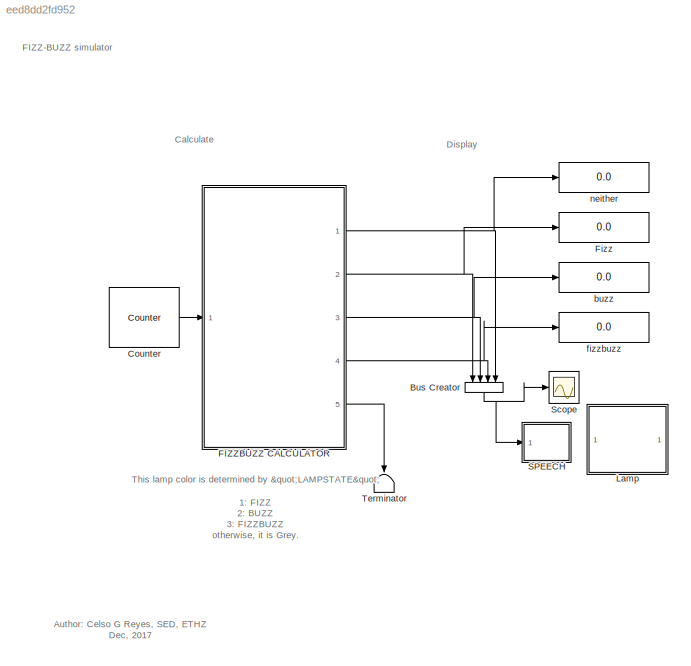
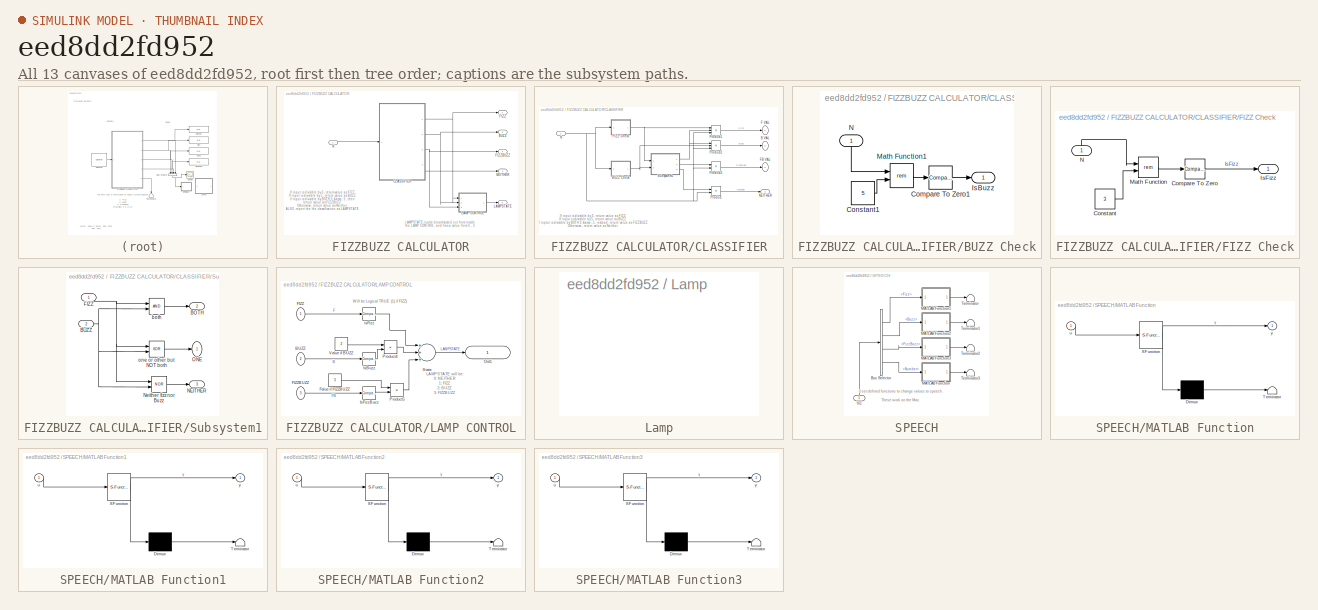
[diagram: thumbnail index - all 13 canvases of the model, root first then tree order]
MODEL slx_eed8dd2fd952
KIND model
CONFIG AbsTol = auto
CONFIG EnableMultiTasking = off
CONFIG FixedStep = auto
CONFIG MaxStep = auto
CONFIG MinStep = auto
CONFIG RelTol = 1e-3
CONFIG SampleTimeConstraint = Unconstrained
CONFIG Solver = VariableStepAuto
CONFIG SolverName = VariableStepAuto
CONFIG StartTime = 0.0
CONFIG StopTime = 31.0
BLOCK [BusCreator] Bus Creator
  DisplayOption = bar
  InheritFromInputs = on
  Inputs = 4
  Ports = [4, 1]
BLOCK [Reference] Counter  REF=dspswit3/Counter
  Ports = [1, 1]
  SourceBlock = dspswit3/Counter
  SourceProductBaseCode = DS
  SourceProductName = DSP System Toolbox
  SourceType = Counter
BLOCK [SubSystem] FIZZBUZZ CALCULATOR
  Ports = [1, 5]
  RequestExecContextInheritance = off
  Variant = off
BLOCK [Outport] FIZZBUZZ CALCULATOR/BUZZ
  IconDisplay = Port number
  Port = 3
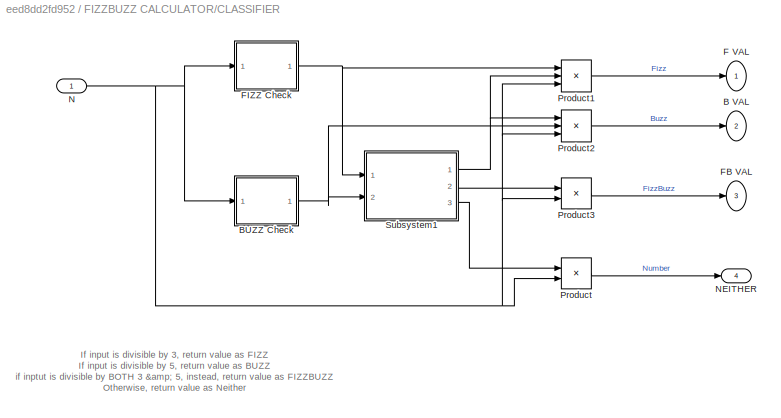
BLOCK [SubSystem] FIZZBUZZ CALCULATOR/CLASSIFIER
  Ports = [1, 4]
  RequestExecContextInheritance = off
  Variant = off
BLOCK [Outport] FIZZBUZZ CALCULATOR/CLASSIFIER/B VAL
  IconDisplay = Port number
  Port = 2
BLOCK [SubSystem] FIZZBUZZ CALCULATOR/CLASSIFIER/BUZZ Check
  Ports = [1, 1]
  RequestExecContextInheritance = off
  Variant = off
BLOCK [Reference] FIZZBUZZ CALCULATOR/CLASSIFIER/BUZZ Check/Compare To Zero1  REF=simulink/Logic and Bit
Operations/Compare
To Zero
  Ports = [1, 1]
  SourceBlock = simulink/Logic and Bit\nOperations/Compare\nTo Zero
  SourceProductBaseCode = SL
  SourceProductName = Simulink
  SourceType = Compare To Zero
BLOCK [Constant] FIZZBUZZ CALCULATOR/CLASSIFIER/BUZZ Check/Constant1
  Value = 5
BLOCK [Outport] FIZZBUZZ CALCULATOR/CLASSIFIER/BUZZ Check/IsBuzz
  IconDisplay = Port number
BLOCK [Math] FIZZBUZZ CALCULATOR/CLASSIFIER/BUZZ Check/Math Function1
  Operator = rem
  Ports = [2, 1]
BLOCK [Inport] FIZZBUZZ CALCULATOR/CLASSIFIER/BUZZ Check/N
  IconDisplay = Port number
BLOCK [Outport] FIZZBUZZ CALCULATOR/CLASSIFIER/F VAL
  IconDisplay = Port number
BLOCK [Outport] FIZZBUZZ CALCULATOR/CLASSIFIER/FB VAL
  IconDisplay = Port number
  Port = 3
BLOCK [SubSystem] FIZZBUZZ CALCULATOR/CLASSIFIER/FIZZ Check
  Ports = [1, 1]
  RequestExecContextInheritance = off
  Variant = off
BLOCK [Reference] FIZZBUZZ CALCULATOR/CLASSIFIER/FIZZ Check/Compare To Zero  REF=simulink/Logic and Bit
Operations/Compare
To Zero
  Ports = [1, 1]
  SourceBlock = simulink/Logic and Bit\nOperations/Compare\nTo Zero
  SourceProductBaseCode = SL
  SourceProductName = Simulink
  SourceType = Compare To Zero
BLOCK [Constant] FIZZBUZZ CALCULATOR/CLASSIFIER/FIZZ Check/Constant
  Value = 3
BLOCK [Outport] FIZZBUZZ CALCULATOR/CLASSIFIER/FIZZ Check/IsFizz
  IconDisplay = Port number
BLOCK [Math] FIZZBUZZ CALCULATOR/CLASSIFIER/FIZZ Check/Math Function
  Operator = rem
  Ports = [2, 1]
BLOCK [Inport] FIZZBUZZ CALCULATOR/CLASSIFIER/FIZZ Check/N
  IconDisplay = Port number
BLOCK [Inport] FIZZBUZZ CALCULATOR/CLASSIFIER/N
  IconDisplay = Port number
BLOCK [Outport] FIZZBUZZ CALCULATOR/CLASSIFIER/NEITHER
  IconDisplay = Port number
  Port = 4
BLOCK [Product] FIZZBUZZ CALCULATOR/CLASSIFIER/Product
  InputSameDT = off
  OutDataTypeStr = Inherit: Inherit via internal rule
  Ports = [2, 1]
  RndMeth = Floor
  SaturateOnIntegerOverflow = off
BLOCK [Product] FIZZBUZZ CALCULATOR/CLASSIFIER/Product1
  InputSameDT = off
  Inputs = 3
  OutDataTypeStr = Inherit: Inherit via internal rule
  Ports = [3, 1]
  RndMeth = Floor
  SaturateOnIntegerOverflow = off
BLOCK [Product] FIZZBUZZ CALCULATOR/CLASSIFIER/Product2
  InputSameDT = off
  Inputs = 3
  OutDataTypeStr = Inherit: Inherit via internal rule
  Ports = [3, 1]
  RndMeth = Floor
  SaturateOnIntegerOverflow = off
BLOCK [Product] FIZZBUZZ CALCULATOR/CLASSIFIER/Product3
  InputSameDT = off
  OutDataTypeStr = Inherit: Inherit via internal rule
  Ports = [2, 1]
  RndMeth = Floor
  SaturateOnIntegerOverflow = off
BLOCK [SubSystem] FIZZBUZZ CALCULATOR/CLASSIFIER/Subsystem1
  Ports = [2, 3]
  RequestExecContextInheritance = off
  Variant = off
BLOCK [Outport] FIZZBUZZ CALCULATOR/CLASSIFIER/Subsystem1/BOTH
  IconDisplay = Port number
  Port = 2
BLOCK [Inport] FIZZBUZZ CALCULATOR/CLASSIFIER/Subsystem1/BUZZ
  IconDisplay = Port number
  Port = 2
BLOCK [Inport] FIZZBUZZ CALCULATOR/CLASSIFIER/Subsystem1/FIZZ
  IconDisplay = Port number
BLOCK [Outport] FIZZBUZZ CALCULATOR/CLASSIFIER/Subsystem1/NEITHER
  IconDisplay = Port number
  Port = 3
BLOCK [Logic] FIZZBUZZ CALCULATOR/CLASSIFIER/Subsystem1/Neither fizz nor Buzz
  AllPortsSameDT = off
  IconShape = distinctive
  Operator = NOR
  OutDataTypeStr = boolean
  Ports = [2, 1]
BLOCK [Outport] FIZZBUZZ CALCULATOR/CLASSIFIER/Subsystem1/ONE
  IconDisplay = Port number
BLOCK [Logic] FIZZBUZZ CALCULATOR/CLASSIFIER/Subsystem1/both
  AllPortsSameDT = off
  IconShape = distinctive
  OutDataTypeStr = boolean
  Ports = [2, 1]
BLOCK [Logic] FIZZBUZZ CALCULATOR/CLASSIFIER/Subsystem1/one or other but NOT both
  AllPortsSameDT = off
  IconShape = distinctive
  Operator = XOR
  OutDataTypeStr = boolean
  Ports = [2, 1]
BLOCK [Outport] FIZZBUZZ CALCULATOR/FIZZ
  IconDisplay = Port number
  Port = 2
BLOCK [Outport] FIZZBUZZ CALCULATOR/FIZZBUZZ
  IconDisplay = Port number
  Port = 4
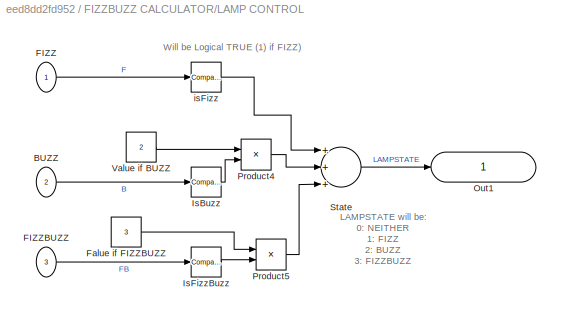
BLOCK [SubSystem] FIZZBUZZ CALCULATOR/LAMP CONTROL
  Ports = [3, 1]
  RequestExecContextInheritance = off
  Variant = off
BLOCK [Inport] FIZZBUZZ CALCULATOR/LAMP CONTROL/BUZZ
  IconDisplay = Port number
  Port = 2
BLOCK [Inport] FIZZBUZZ CALCULATOR/LAMP CONTROL/FIZZ
  IconDisplay = Port number
BLOCK [Inport] FIZZBUZZ CALCULATOR/LAMP CONTROL/FIZZBUZZ
  IconDisplay = Port number
  Port = 3
BLOCK [Constant] FIZZBUZZ CALCULATOR/LAMP CONTROL/Falue if FIZZBUZZ
  Value = 3
BLOCK [Reference] FIZZBUZZ CALCULATOR/LAMP CONTROL/IsBuzz  REF=simulink/Logic and Bit
Operations/Compare
To Zero
  Ports = [1, 1]
  SourceBlock = simulink/Logic and Bit\nOperations/Compare\nTo Zero
  SourceProductBaseCode = SL
  SourceProductName = Simulink
  SourceType = Compare To Zero
BLOCK [Reference] FIZZBUZZ CALCULATOR/LAMP CONTROL/IsFizzBuzz  REF=simulink/Logic and Bit
Operations/Compare
To Zero
  Ports = [1, 1]
  SourceBlock = simulink/Logic and Bit\nOperations/Compare\nTo Zero
  SourceProductBaseCode = SL
  SourceProductName = Simulink
  SourceType = Compare To Zero
BLOCK [Outport] FIZZBUZZ CALCULATOR/LAMP CONTROL/Out1
  IconDisplay = Signal name
BLOCK [Product] FIZZBUZZ CALCULATOR/LAMP CONTROL/Product4
  InputSameDT = off
  OutDataTypeStr = Inherit: Inherit via internal rule
  Ports = [2, 1]
  RndMeth = Floor
  SaturateOnIntegerOverflow = off
BLOCK [Product] FIZZBUZZ CALCULATOR/LAMP CONTROL/Product5
  InputSameDT = off
  OutDataTypeStr = Inherit: Inherit via internal rule
  Ports = [2, 1]
  RndMeth = Floor
  SaturateOnIntegerOverflow = off
BLOCK [Sum] FIZZBUZZ CALCULATOR/LAMP CONTROL/State
  InputSameDT = off
  Inputs = +++
  OutDataTypeStr = Inherit: Inherit via internal rule
  Ports = [3, 1]
  SaturateOnIntegerOverflow = off
BLOCK [Constant] FIZZBUZZ CALCULATOR/LAMP CONTROL/Value if BUZZ
  Value = 2
BLOCK [Reference] FIZZBUZZ CALCULATOR/LAMP CONTROL/isFizz  REF=simulink/Logic and Bit
Operations/Compare
To Zero
  Ports = [1, 1]
  SourceBlock = simulink/Logic and Bit\nOperations/Compare\nTo Zero
  SourceProductBaseCode = SL
  SourceProductName = Simulink
  SourceType = Compare To Zero
BLOCK [Outport] FIZZBUZZ CALCULATOR/LAMPSTATE
  IconDisplay = Port number
  Port = 5
BLOCK [Inport] FIZZBUZZ CALCULATOR/N
  IconDisplay = Port number
BLOCK [Outport] FIZZBUZZ CALCULATOR/NEITHER
  IconDisplay = Port number
BLOCK [Display] Fizz
  Decimation = 1
  Ports = [1]
BLOCK [SubSystem] Lamp
  DialogController = hmiCreateDDGDialog
  IsWebBlock = on
  MaskHideContents = on
  Ports = []
  RequestExecContextInheritance = off
  Variant = off
BLOCK [SubSystem] SPEECH
  Ports = [1]
  RequestExecContextInheritance = off
  Variant = off
BLOCK [BusSelector] SPEECH/Bus Selector
  OutputAsBus = off
  OutputSignals = Fizz,Buzz,FizzBuzz,Number
  Ports = [1, 4]
BLOCK [Inport] SPEECH/In1
  IconDisplay = Port number
BLOCK [SubSystem] SPEECH/MATLAB Function
  ErrorFcn = Stateflow.Translate.translate
  PermitHierarchicalResolution = ExplicitOnly
  Ports = [1, 1]
  RequestExecContextInheritance = off
  SFBlockType = MATLAB Function
  TreatAsAtomicUnit = on
  Variant = off
BLOCK [Demux] SPEECH/MATLAB Function/ Demux 
  Outputs = 1
  Ports = [1, 1]
BLOCK [S-Function] SPEECH/MATLAB Function/ SFunction 
  EnableBusSupport = on
  FunctionName = sf_sfun
  PortCounts = [1 2]
  Ports = [1, 2]
  SFcnIsStateOwnerBlock = off
  SFunctionDeploymentMode = off
  Tag = Stateflow S-Function fizzbuzz_simulator_c 2
BLOCK [Terminator] SPEECH/MATLAB Function/ Terminator 
BLOCK [Inport] SPEECH/MATLAB Function/u
  IconDisplay = Port number
BLOCK [Outport] SPEECH/MATLAB Function/y
  IconDisplay = Port number
BLOCK [SubSystem] SPEECH/MATLAB Function1
  ErrorFcn = Stateflow.Translate.translate
  PermitHierarchicalResolution = ExplicitOnly
  Ports = [1, 1]
  RequestExecContextInheritance = off
  SFBlockType = MATLAB Function
  TreatAsAtomicUnit = on
  Variant = off
BLOCK [Demux] SPEECH/MATLAB Function1/ Demux 
  Outputs = 1
  Ports = [1, 1]
BLOCK [S-Function] SPEECH/MATLAB Function1/ SFunction 
  EnableBusSupport = on
  FunctionName = sf_sfun
  PortCounts = [1 2]
  Ports = [1, 2]
  SFcnIsStateOwnerBlock = off
  SFunctionDeploymentMode = off
  Tag = Stateflow S-Function fizzbuzz_simulator_c 1
BLOCK [Terminator] SPEECH/MATLAB Function1/ Terminator 
BLOCK [Inport] SPEECH/MATLAB Function1/u
  IconDisplay = Port number
BLOCK [Outport] SPEECH/MATLAB Function1/y
  IconDisplay = Port number
BLOCK [SubSystem] SPEECH/MATLAB Function2
  ErrorFcn = Stateflow.Translate.translate
  PermitHierarchicalResolution = ExplicitOnly
  Ports = [1, 1]
  RequestExecContextInheritance = off
  SFBlockType = MATLAB Function
  TreatAsAtomicUnit = on
  Variant = off
BLOCK [Demux] SPEECH/MATLAB Function2/ Demux 
  Outputs = 1
  Ports = [1, 1]
BLOCK [S-Function] SPEECH/MATLAB Function2/ SFunction 
  EnableBusSupport = on
  FunctionName = sf_sfun
  PortCounts = [1 2]
  Ports = [1, 2]
  SFcnIsStateOwnerBlock = off
  SFunctionDeploymentMode = off
  Tag = Stateflow S-Function fizzbuzz_simulator_c 3
BLOCK [Terminator] SPEECH/MATLAB Function2/ Terminator 
BLOCK [Inport] SPEECH/MATLAB Function2/u
  IconDisplay = Port number
BLOCK [Outport] SPEECH/MATLAB Function2/y
  IconDisplay = Port number
BLOCK [SubSystem] SPEECH/MATLAB Function3
  ErrorFcn = Stateflow.Translate.translate
  PermitHierarchicalResolution = ExplicitOnly
  Ports = [1, 1]
  RequestExecContextInheritance = off
  SFBlockType = MATLAB Function
  TreatAsAtomicUnit = on
  Variant = off
BLOCK [Demux] SPEECH/MATLAB Function3/ Demux 
  Outputs = 1
  Ports = [1, 1]
BLOCK [S-Function] SPEECH/MATLAB Function3/ SFunction 
  EnableBusSupport = on
  FunctionName = sf_sfun
  PortCounts = [1 2]
  Ports = [1, 2]
  SFcnIsStateOwnerBlock = off
  SFunctionDeploymentMode = off
  Tag = Stateflow S-Function fizzbuzz_simulator_c 4
BLOCK [Terminator] SPEECH/MATLAB Function3/ Terminator 
BLOCK [Inport] SPEECH/MATLAB Function3/u
  IconDisplay = Port number
BLOCK [Outport] SPEECH/MATLAB Function3/y
  IconDisplay = Port number
BLOCK [Terminator] SPEECH/Terminator
BLOCK [Terminator] SPEECH/Terminator1
BLOCK [Terminator] SPEECH/Terminator2
BLOCK [Terminator] SPEECH/Terminator3
BLOCK [Scope] Scope
  NumInputPorts = 1
  Ports = [1]
  ScopeSpecificationString = Simulink.scopes.TimeScopeBlockCfg('CurrentConfiguration', extmgr.ConfigurationSet(extmgr.Configuration('Core','General UI',true),extmgr.Configuration('Core','Source UI',true),extmgr.Configuration('Sources','WiredSimulink',true),extmgr.Configuration('Visuals','Time Domain',true,'SerializedDisplays',{struct('MinYLimReal','-1.75','MaxYLimReal','15.75','YLabelReal','','MinYLimMag','0.00000','MaxYLimMa...<+1895ch>
BLOCK [Terminator] Terminator
BLOCK [Display] buzz
  Decimation = 1
  Ports = [1]
BLOCK [Display] fizzbuzz
  Decimation = 1
  Ports = [1]
BLOCK [Display] neither
  Decimation = 1
  Ports = [1]
ANNOTATION (root): FIZZ-BUZZ simulator
ANNOTATION (root): This lamp color is determined by "LAMPSTATE" 1: FIZZ 2: BUZZ 3: FIZZBUZZ otherwise, it is Grey .
ANNOTATION (root): Author: Celso G Reyes, SED, ETHZ Dec, 2017
ANNOTATION (root): Calculate
ANNOTATION (root): Display
ANNOTATION FIZZBUZZ CALCULATOR: If input is divisible by 3, returnvalue as FIZZ If input is divisible by 5, return value as BUZZ if input is divisible by BOTH 3 & 5, then return value as FIZZBUZZ Otherwise, return value as Neither ALSO, report the the classification as LAMPSTATE
ANNOTATION FIZZBUZZ CALCULATOR: LAMPSTATE is also broadcasted out from inside the LAMP CONTROL, and has a value from 0 - 3
ANNOTATION FIZZBUZZ CALCULATOR/CLASSIFIER: If input is divisible by 3, return value as FIZZ If input is divisible by 5, return value as BUZZ if inptut is divisible by BOTH 3 & 5, instead, return value as FIZZBUZZ Otherwise, return value as Neither
ANNOTATION FIZZBUZZ CALCULATOR/LAMP CONTROL: LAMPSTATE will be: 0: NEITHER 1: FIZZ 2: BUZZ 3: FIZZBUZZ
ANNOTATION FIZZBUZZ CALCULATOR/LAMP CONTROL: Will be Logical TRUE (1) if FIZZ)
ANNOTATION SPEECH: User-defined functions to change values to speech. These work on the Mac.
NET Bus Creator:1 -> SPEECH:1, Scope:1
LINE Counter:1 -> FIZZBUZZ CALCULATOR:1
LINE FIZZBUZZ CALCULATOR/CLASSIFIER/BUZZ Check/Compare To Zero1:1 -> FIZZBUZZ CALCULATOR/CLASSIFIER/BUZZ Check/IsBuzz:1
LINE FIZZBUZZ CALCULATOR/CLASSIFIER/BUZZ Check/Constant1:1 -> FIZZBUZZ CALCULATOR/CLASSIFIER/BUZZ Check/Math Function1:2
LINE FIZZBUZZ CALCULATOR/CLASSIFIER/BUZZ Check/Math Function1:1 -> FIZZBUZZ CALCULATOR/CLASSIFIER/BUZZ Check/Compare To Zero1:1
LINE FIZZBUZZ CALCULATOR/CLASSIFIER/BUZZ Check/N:1 -> FIZZBUZZ CALCULATOR/CLASSIFIER/BUZZ Check/Math Function1:1
NET FIZZBUZZ CALCULATOR/CLASSIFIER/BUZZ Check:1 -> FIZZBUZZ CALCULATOR/CLASSIFIER/Product2:2, FIZZBUZZ CALCULATOR/CLASSIFIER/Subsystem1:2
LINE FIZZBUZZ CALCULATOR/CLASSIFIER/FIZZ Check/Compare To Zero:1 -> FIZZBUZZ CALCULATOR/CLASSIFIER/FIZZ Check/IsFizz:1
LINE FIZZBUZZ CALCULATOR/CLASSIFIER/FIZZ Check/Constant:1 -> FIZZBUZZ CALCULATOR/CLASSIFIER/FIZZ Check/Math Function:2
LINE FIZZBUZZ CALCULATOR/CLASSIFIER/FIZZ Check/Math Function:1 -> FIZZBUZZ CALCULATOR/CLASSIFIER/FIZZ Check/Compare To Zero:1
LINE FIZZBUZZ CALCULATOR/CLASSIFIER/FIZZ Check/N:1 -> FIZZBUZZ CALCULATOR/CLASSIFIER/FIZZ Check/Math Function:1
NET FIZZBUZZ CALCULATOR/CLASSIFIER/FIZZ Check:1 -> FIZZBUZZ CALCULATOR/CLASSIFIER/Product1:1, FIZZBUZZ CALCULATOR/CLASSIFIER/Subsystem1:1
NET FIZZBUZZ CALCULATOR/CLASSIFIER/N:1 -> FIZZBUZZ CALCULATOR/CLASSIFIER/BUZZ Check:1, FIZZBUZZ CALCULATOR/CLASSIFIER/FIZZ Check:1, FIZZBUZZ CALCULATOR/CLASSIFIER/Product1:3, FIZZBUZZ CALCULATOR/CLASSIFIER/Product2:3, FIZZBUZZ CALCULATOR/CLASSIFIER/Product3:2, FIZZBUZZ CALCULATOR/CLASSIFIER/Product:2
LINE FIZZBUZZ CALCULATOR/CLASSIFIER/Product1:1 -> FIZZBUZZ CALCULATOR/CLASSIFIER/F VAL:1
LINE FIZZBUZZ CALCULATOR/CLASSIFIER/Product2:1 -> FIZZBUZZ CALCULATOR/CLASSIFIER/B VAL:1
LINE FIZZBUZZ CALCULATOR/CLASSIFIER/Product3:1 -> FIZZBUZZ CALCULATOR/CLASSIFIER/FB VAL:1
LINE FIZZBUZZ CALCULATOR/CLASSIFIER/Product:1 -> FIZZBUZZ CALCULATOR/CLASSIFIER/NEITHER:1
NET FIZZBUZZ CALCULATOR/CLASSIFIER/Subsystem1/BUZZ:1 -> FIZZBUZZ CALCULATOR/CLASSIFIER/Subsystem1/Neither fizz nor Buzz:2, FIZZBUZZ CALCULATOR/CLASSIFIER/Subsystem1/both:2, FIZZBUZZ CALCULATOR/CLASSIFIER/Subsystem1/one or other but NOT both:2
NET FIZZBUZZ CALCULATOR/CLASSIFIER/Subsystem1/FIZZ:1 -> FIZZBUZZ CALCULATOR/CLASSIFIER/Subsystem1/Neither fizz nor Buzz:1, FIZZBUZZ CALCULATOR/CLASSIFIER/Subsystem1/both:1, FIZZBUZZ CALCULATOR/CLASSIFIER/Subsystem1/one or other but NOT both:1
LINE FIZZBUZZ CALCULATOR/CLASSIFIER/Subsystem1/Neither fizz nor Buzz:1 -> FIZZBUZZ CALCULATOR/CLASSIFIER/Subsystem1/NEITHER:1
LINE FIZZBUZZ CALCULATOR/CLASSIFIER/Subsystem1/both:1 -> FIZZBUZZ CALCULATOR/CLASSIFIER/Subsystem1/BOTH:1
LINE FIZZBUZZ CALCULATOR/CLASSIFIER/Subsystem1/one or other but NOT both:1 -> FIZZBUZZ CALCULATOR/CLASSIFIER/Subsystem1/ONE:1
NET FIZZBUZZ CALCULATOR/CLASSIFIER/Subsystem1:1 -> FIZZBUZZ CALCULATOR/CLASSIFIER/Product1:2, FIZZBUZZ CALCULATOR/CLASSIFIER/Product2:1
LINE FIZZBUZZ CALCULATOR/CLASSIFIER/Subsystem1:2 -> FIZZBUZZ CALCULATOR/CLASSIFIER/Product3:1
LINE FIZZBUZZ CALCULATOR/CLASSIFIER/Subsystem1:3 -> FIZZBUZZ CALCULATOR/CLASSIFIER/Product:1
NET FIZZBUZZ CALCULATOR/CLASSIFIER:1 -> FIZZBUZZ CALCULATOR/FIZZ:1, FIZZBUZZ CALCULATOR/LAMP CONTROL:1
NET FIZZBUZZ CALCULATOR/CLASSIFIER:2 -> FIZZBUZZ CALCULATOR/BUZZ:1, FIZZBUZZ CALCULATOR/LAMP CONTROL:2
NET FIZZBUZZ CALCULATOR/CLASSIFIER:3 -> FIZZBUZZ CALCULATOR/FIZZBUZZ:1, FIZZBUZZ CALCULATOR/LAMP CONTROL:3
LINE FIZZBUZZ CALCULATOR/CLASSIFIER:4 -> FIZZBUZZ CALCULATOR/NEITHER:1
LINE FIZZBUZZ CALCULATOR/LAMP CONTROL/BUZZ:1 -> FIZZBUZZ CALCULATOR/LAMP CONTROL/IsBuzz:1
LINE FIZZBUZZ CALCULATOR/LAMP CONTROL/FIZZ:1 -> FIZZBUZZ CALCULATOR/LAMP CONTROL/isFizz:1
LINE FIZZBUZZ CALCULATOR/LAMP CONTROL/FIZZBUZZ:1 -> FIZZBUZZ CALCULATOR/LAMP CONTROL/IsFizzBuzz:1
LINE FIZZBUZZ CALCULATOR/LAMP CONTROL/Falue if FIZZBUZZ:1 -> FIZZBUZZ CALCULATOR/LAMP CONTROL/Product5:1
LINE FIZZBUZZ CALCULATOR/LAMP CONTROL/IsBuzz:1 -> FIZZBUZZ CALCULATOR/LAMP CONTROL/Product4:2
LINE FIZZBUZZ CALCULATOR/LAMP CONTROL/IsFizzBuzz:1 -> FIZZBUZZ CALCULATOR/LAMP CONTROL/Product5:2
LINE FIZZBUZZ CALCULATOR/LAMP CONTROL/Product4:1 -> FIZZBUZZ CALCULATOR/LAMP CONTROL/State:2
LINE FIZZBUZZ CALCULATOR/LAMP CONTROL/Product5:1 -> FIZZBUZZ CALCULATOR/LAMP CONTROL/State:3
LINE FIZZBUZZ CALCULATOR/LAMP CONTROL/State:1 -> FIZZBUZZ CALCULATOR/LAMP CONTROL/Out1:1
LINE FIZZBUZZ CALCULATOR/LAMP CONTROL/Value if BUZZ:1 -> FIZZBUZZ CALCULATOR/LAMP CONTROL/Product4:1
LINE FIZZBUZZ CALCULATOR/LAMP CONTROL/isFizz:1 -> FIZZBUZZ CALCULATOR/LAMP CONTROL/State:1
LINE FIZZBUZZ CALCULATOR/LAMP CONTROL:1 -> FIZZBUZZ CALCULATOR/LAMPSTATE:1
LINE FIZZBUZZ CALCULATOR/N:1 -> FIZZBUZZ CALCULATOR/CLASSIFIER:1
NET FIZZBUZZ CALCULATOR:1 -> Bus Creator:4, neither:1
NET FIZZBUZZ CALCULATOR:2 -> Bus Creator:1, Fizz:1
NET FIZZBUZZ CALCULATOR:3 -> Bus Creator:2, buzz:1
NET FIZZBUZZ CALCULATOR:4 -> Bus Creator:3, fizzbuzz:1
LINE FIZZBUZZ CALCULATOR:5 -> Terminator:1
LINE SPEECH/Bus Selector:1 -> SPEECH/MATLAB Function1:1
LINE SPEECH/Bus Selector:2 -> SPEECH/MATLAB Function2:1
LINE SPEECH/Bus Selector:3 -> SPEECH/MATLAB Function3:1
LINE SPEECH/Bus Selector:4 -> SPEECH/MATLAB Function:1
LINE SPEECH/In1:1 -> SPEECH/Bus Selector:1
LINE SPEECH/MATLAB Function1:1 -> SPEECH/Terminator:1
LINE SPEECH/MATLAB Function2:1 -> SPEECH/Terminator1:1
LINE SPEECH/MATLAB Function3:1 -> SPEECH/Terminator2:1
LINE SPEECH/MATLAB Function:1 -> SPEECH/Terminator3:1
note: NET lines group one-source signal fan-out (src -> all destinations, sorted); 1:1 wires keep LINE
CHART SPEECH/MATLAB Function1 states=1 transitions=1
  STATE_LABEL 'eML_blk_kernel()'
  STATE_LABEL 'SCRIPT:\nfunction y = sayFizz(u)\n    coder.extrinsic(\'system\')\n    if u ~= 0\n        cmd=[\'say "fizz"\'];\n        system(cmd)\n    end\n    y = u;\nend\n'
CHART SPEECH/MATLAB Function states=1 transitions=1
  STATE_LABEL 'eML_blk_kernel()'
  STATE_LABEL "SCRIPT:\nfunction y = sayNumber(u)\n    coder.extrinsic('system')\n    coder.extrinsic('sprintf')\n    if u ~= 0\n        cmd=['say ' sprintf('%d',u)];\n        system(cmd)\n    end\n    y = u;\nend"
CHART SPEECH/MATLAB Function2 states=1 transitions=1
  STATE_LABEL 'eML_blk_kernel()'
  STATE_LABEL 'SCRIPT:\nfunction y = sayBuzz(u)\n    coder.extrinsic(\'system\')\n    if u ~= 0\n        cmd=[\'say "buzz"\'];\n        system(cmd)\n    end\n    y = u;\nend\n'
CHART SPEECH/MATLAB Function3 states=1 transitions=1
  STATE_LABEL 'eML_blk_kernel()'
  STATE_LABEL 'SCRIPT:\nfunction y = sayFizzBuzz(u)\n    coder.extrinsic(\'system\')\n    if u ~= 0\n        cmd=[\'say "fizzbuzz"\'];\n        system(cmd)\n    end\n    y = u;\nend\n'
